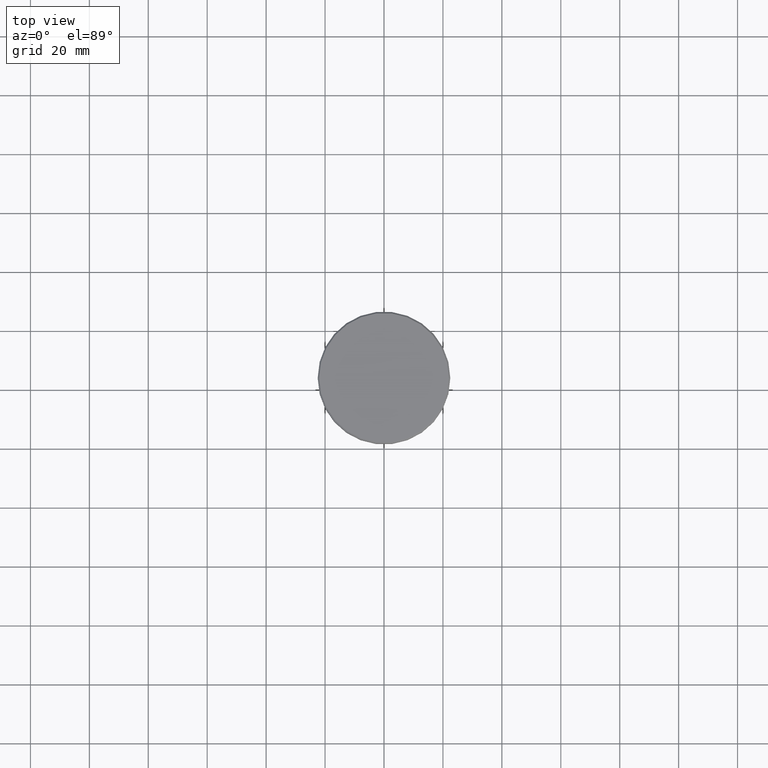
[diagram: clean part render]
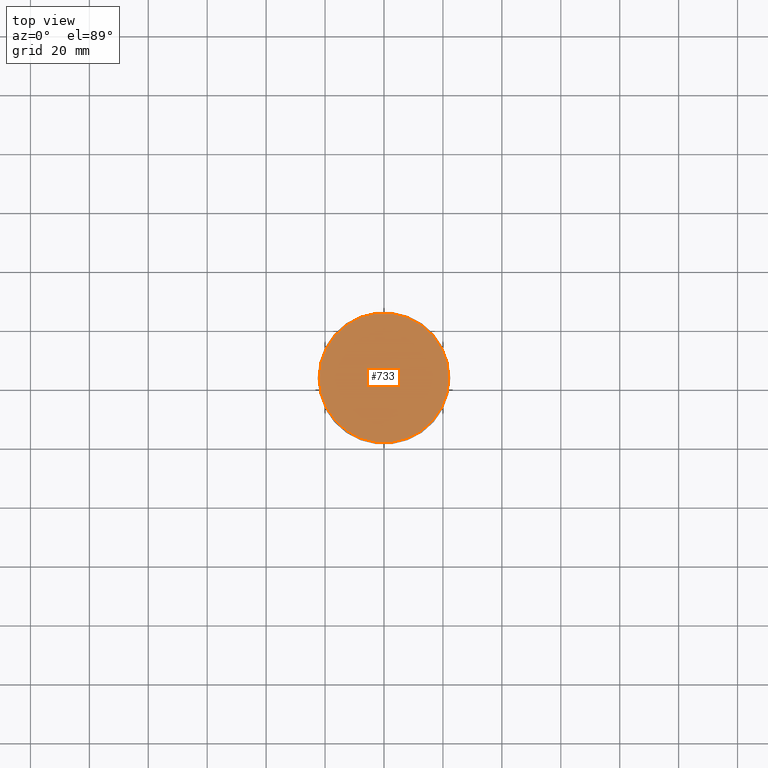
[diagram: same view with one face highlighted and labeled with its STEP entity id]
A machine part, top view. The second image highlights one B-rep face of the part: STEP entity #733.
In plain terms, the highlighted planar face has unit normal (0, -0, 1).
Its self-contained STEP definition (entity closure, byte-faithful):
#17 = VERTEX_POINT ( 'NONE', #448 ) ;
#63 = CARTESIAN_POINT ( 'NONE',  ( 0.000000000000000000, 0.000000000000000000, 0.000000000000000000 ) ) ;
#171 = EDGE_LOOP ( 'NONE', ( #572, #594 ) ) ;
#238 = FACE_OUTER_BOUND ( 'NONE', #171, .T. ) ;
#299 = CARTESIAN_POINT ( 'NONE',  ( 0.000000000000000000, 0.000000000000000000, 0.000000000000000000 ) ) ;
#391 = DIRECTION ( 'NONE',  ( -0.000000000000000000, -0.000000000000000000, 1.000000000000000000 ) ) ;
#406 = DIRECTION ( 'NONE',  ( 1.000000000000000000, 0.000000000000000000, 0.000000000000000000 ) ) ;
#428 = DIRECTION ( 'NONE',  ( 0.000000000000000000, -0.000000000000000000, 1.000000000000000000 ) ) ;
#448 = CARTESIAN_POINT ( 'NONE',  ( -21.99999999999996447, 0.000000000000000000, 0.000000000000000000 ) ) ;
#487 = DIRECTION ( 'NONE',  ( 1.000000000000000000, 0.000000000000000000, 0.000000000000000000 ) ) ;
#544 = EDGE_CURVE ( 'NONE', #636, #17, #876, .T. ) ;
#572 = ORIENTED_EDGE ( 'NONE', *, *, #1010, .T. ) ;
#594 = ORIENTED_EDGE ( 'NONE', *, *, #544, .T. ) ;
#636 = VERTEX_POINT ( 'NONE', #901 ) ;
#698 = DIRECTION ( 'NONE',  ( 1.000000000000000000, 0.000000000000000000, 0.000000000000000000 ) ) ;
#733 = ADVANCED_FACE ( 'NONE', ( #238 ), #866, .T. ) ;
#742 = DIRECTION ( 'NONE',  ( -0.000000000000000000, -0.000000000000000000, 1.000000000000000000 ) ) ;
#866 = PLANE ( 'NONE',  #919 ) ;
#876 = CIRCLE ( 'NONE', #980, 21.99999999999996447 ) ;
#879 = CIRCLE ( 'NONE', #922, 21.99999999999996447 ) ;
#901 = CARTESIAN_POINT ( 'NONE',  ( 21.99999999999996447, 2.724839128102858624E-15, 0.000000000000000000 ) ) ;
#919 = AXIS2_PLACEMENT_3D ( 'NONE', #63, #428, #698 ) ;
#922 = AXIS2_PLACEMENT_3D ( 'NONE', #299, #742, #487 ) ;
#980 = AXIS2_PLACEMENT_3D ( 'NONE', #1039, #391, #406 ) ;
#1010 = EDGE_CURVE ( 'NONE', #17, #636, #879, .T. ) ;
#1039 = CARTESIAN_POINT ( 'NONE',  ( 0.000000000000000000, 0.000000000000000000, 0.000000000000000000 ) ) ;